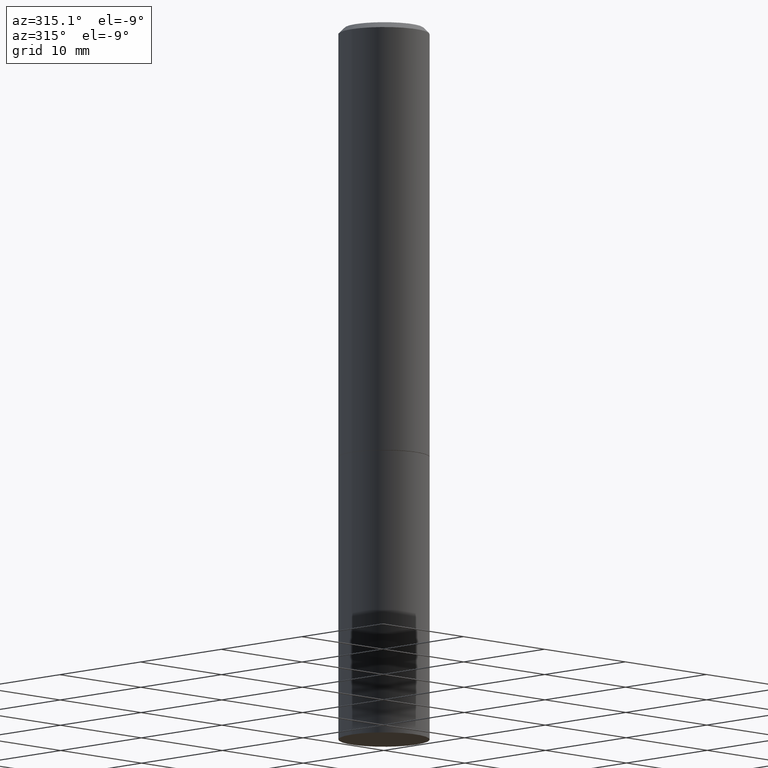
[diagram: clean part render]
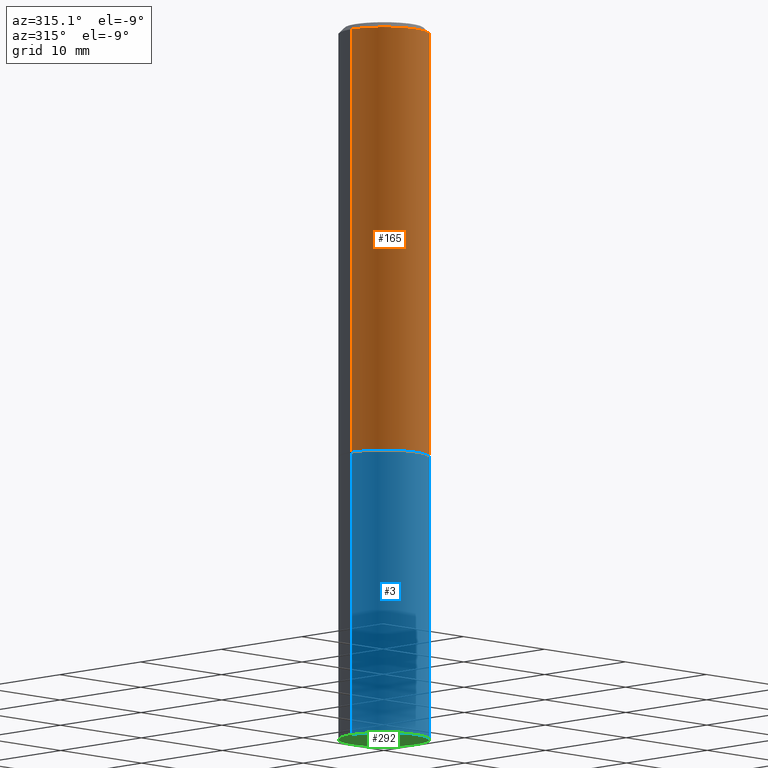
[diagram: same view with three faces highlighted in distinct colors, each labeled with its STEP entity id]
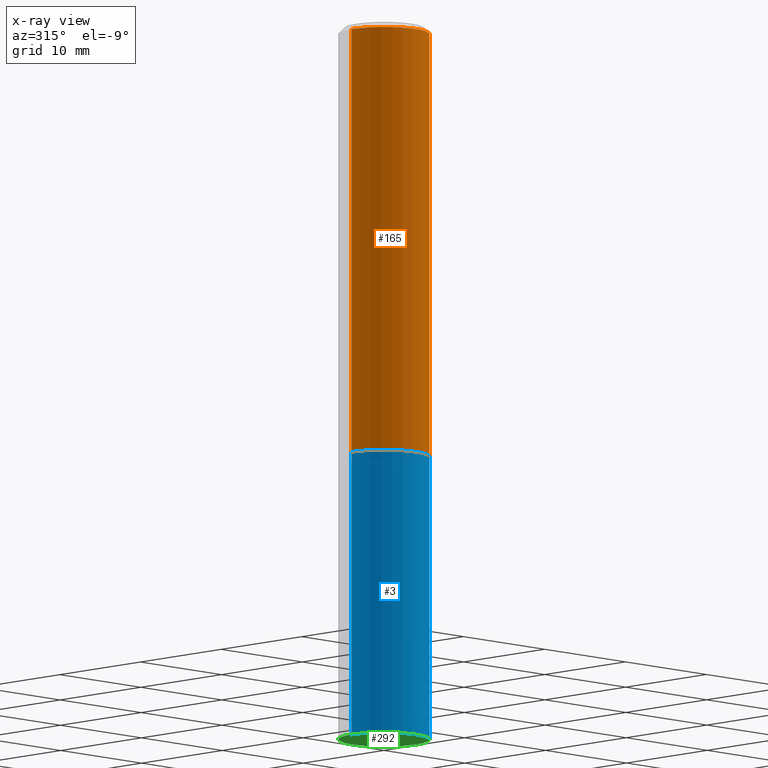
[diagram: x-ray of the same camera — body ghosted, the three highlighted faces saturated]
A machine part, auxiliary view with three faces highlighted in distinct colors.
The next image is the same camera in x-ray (body ghosted, the three faces saturated) — at least one of them is partly hidden behind the body in this view.
Their STEP definitions:

[orange] entity #165 — the highlighted cylindrical surface (partial cylindrical patch) has radius 4.0005 mm, axis along (-0, 0, 1).
#11 = DIRECTION ( 'NONE',  ( -2.445468806185136597E-29, 3.491481338843145583E-15, 1.000000000000000000 ) ) ;
#12 = DIRECTION ( 'NONE',  ( -2.445468806185136877E-29, 3.491481338843145188E-15, 1.000000000000000000 ) ) ;
#25 = VERTEX_POINT ( 'NONE', #79 ) ;
#33 = DIRECTION ( 'NONE',  ( 1.000000000000000000, -6.982962677686266711E-15, 4.876176775795935793E-29 ) ) ;
#38 = DIRECTION ( 'NONE',  ( -2.445468806185136877E-29, 3.491481338843145188E-15, 1.000000000000000000 ) ) ;
#40 = LINE ( 'NONE', #89, #124 ) ;
#45 = ORIENTED_EDGE ( 'NONE', *, *, #265, .T. ) ;
#46 = CARTESIAN_POINT ( 'NONE',  ( 0.1574999999999998901, -1.099816621735586297E-15, 7.679978421878593829E-30 ) ) ;
#62 = CARTESIAN_POINT ( 'NONE',  ( 3.655975865246779683E-29, -5.219764601570503930E-15, -1.495000000000000329 ) ) ;
#63 = CIRCLE ( 'NONE', #204, 0.1575000000000000011 ) ;
#69 = VERTEX_POINT ( 'NONE', #317 ) ;
#75 = AXIS2_PLACEMENT_3D ( 'NONE', #271, #206, #125 ) ;
#79 = CARTESIAN_POINT ( 'NONE',  ( -0.1574999999999998346, 1.029986994958722604E-15, -0.02000000000000003511 ) ) ;
#81 = EDGE_CURVE ( 'NONE', #96, #25, #40, .T. ) ;
#89 = CARTESIAN_POINT ( 'NONE',  ( -0.1574999999999998901, 1.119104808822157012E-15, -7.747322767151471379E-30 ) ) ;
#93 = EDGE_CURVE ( 'NONE', #96, #69, #63, .T. ) ;
#96 = VERTEX_POINT ( 'NONE', #152 ) ;
#124 = VECTOR ( 'NONE', #38, 39.37007874015748143 ) ;
#125 = DIRECTION ( 'NONE',  ( 1.000000000000000000, -6.982962677686265922E-15, 0.000000000000000000 ) ) ;
#143 = CARTESIAN_POINT ( 'NONE',  ( 0.000000000000000000, 0.000000000000000000, 0.000000000000000000 ) ) ;
#152 = CARTESIAN_POINT ( 'NONE',  ( -0.1575000000000000011, -1.525692305351524236E-15, -1.495000000000000329 ) ) ;
#153 = VERTEX_POINT ( 'NONE', #221 ) ;
#165 = ADVANCED_FACE ( 'NONE', ( #365 ), #196, .T. ) ;
#180 = ORIENTED_EDGE ( 'NONE', *, *, #93, .T. ) ;
#196 = CYLINDRICAL_SURFACE ( 'NONE', #277, 0.1574999999999998901 ) ;
#198 = CIRCLE ( 'NONE', #75, 0.1574999999999998346 ) ;
#204 = AXIS2_PLACEMENT_3D ( 'NONE', #62, #11, #327 ) ;
#206 = DIRECTION ( 'NONE',  ( -2.445468806185136597E-29, 3.491481338843145583E-15, 1.000000000000000000 ) ) ;
#220 = VECTOR ( 'NONE', #12, 39.37007874015748143 ) ;
#221 = CARTESIAN_POINT ( 'NONE',  ( 0.1574999999999998346, -1.150358061425878091E-15, -0.02000000000000003511 ) ) ;
#226 = EDGE_CURVE ( 'NONE', #25, #153, #198, .T. ) ;
#228 = DIRECTION ( 'NONE',  ( -2.445468806185136597E-29, 3.491481338843145583E-15, 1.000000000000000000 ) ) ;
#264 = EDGE_LOOP ( 'NONE', ( #359, #180, #45, #334 ) ) ;
#265 = EDGE_CURVE ( 'NONE', #69, #153, #302, .T. ) ;
#271 = CARTESIAN_POINT ( 'NONE',  ( 4.890937612370281041E-31, -6.982962677686302702E-17, -0.02000000000000003511 ) ) ;
#277 = AXIS2_PLACEMENT_3D ( 'NONE', #143, #228, #33 ) ;
#302 = LINE ( 'NONE', #46, #220 ) ;
#317 = CARTESIAN_POINT ( 'NONE',  ( 0.1575000000000000011, -6.319581223306091410E-15, -1.495000000000000329 ) ) ;
#327 = DIRECTION ( 'NONE',  ( 1.000000000000000000, -6.982962677686268288E-15, 0.000000000000000000 ) ) ;
#334 = ORIENTED_EDGE ( 'NONE', *, *, #226, .F. ) ;
#359 = ORIENTED_EDGE ( 'NONE', *, *, #81, .F. ) ;
#365 = FACE_OUTER_BOUND ( 'NONE', #264, .T. ) ;

[blue] entity #3 — the highlighted cylindrical surface (partial cylindrical patch) has radius 4.0005 mm, axis along (-0, 0, 1).
#3 = ADVANCED_FACE ( 'NONE', ( #218 ), #29, .T. ) ;
#22 = VERTEX_POINT ( 'NONE', #106 ) ;
#29 = CYLINDRICAL_SURFACE ( 'NONE', #229, 0.1575000000000000011 ) ;
#36 = CARTESIAN_POINT ( 'NONE',  ( 3.658421334052965286E-29, -5.223256082909346937E-15, -1.496000000000000441 ) ) ;
#44 = CARTESIAN_POINT ( 'NONE',  ( 0.1575000000000000011, -6.323072704644934417E-15, -1.496000000000000441 ) ) ;
#68 = EDGE_CURVE ( 'NONE', #301, #131, #146, .T. ) ;
#78 = EDGE_CURVE ( 'NONE', #219, #301, #293, .T. ) ;
#85 = EDGE_CURVE ( 'NONE', #22, #131, #91, .T. ) ;
#91 = CIRCLE ( 'NONE', #177, 0.1575000000000000011 ) ;
#102 = ORIENTED_EDGE ( 'NONE', *, *, #68, .T. ) ;
#105 = EDGE_LOOP ( 'NONE', ( #311, #328, #102, #183 ) ) ;
#106 = CARTESIAN_POINT ( 'NONE',  ( -0.1575000000000000011, -5.822483814998842744E-15, -1.496000000000000441 ) ) ;
#131 = VERTEX_POINT ( 'NONE', #44 ) ;
#138 = DIRECTION ( 'NONE',  ( 1.000000000000000000, -6.982962677686261977E-15, 0.000000000000000000 ) ) ;
#139 = DIRECTION ( 'NONE',  ( 1.000000000000000000, -6.982962677686268288E-15, 0.000000000000000000 ) ) ;
#146 = LINE ( 'NONE', #349, #184 ) ;
#167 = DIRECTION ( 'NONE',  ( -2.445468806185136597E-29, 3.491481338843145583E-15, 1.000000000000000000 ) ) ;
#177 = AXIS2_PLACEMENT_3D ( 'NONE', #36, #167, #139 ) ;
#179 = CARTESIAN_POINT ( 'NONE',  ( -0.1575000000000000011, 1.119104808822157801E-15, -7.747322767151475583E-30 ) ) ;
#183 = ORIENTED_EDGE ( 'NONE', *, *, #85, .F. ) ;
#184 = VECTOR ( 'NONE', #262, 39.37007874015748143 ) ;
#191 = CARTESIAN_POINT ( 'NONE',  ( 0.000000000000000000, 0.000000000000000000, 0.000000000000000000 ) ) ;
#193 = DIRECTION ( 'NONE',  ( -2.445468806185136597E-29, 3.491481338843145583E-15, 1.000000000000000000 ) ) ;
#218 = FACE_OUTER_BOUND ( 'NONE', #105, .T. ) ;
#219 = VERTEX_POINT ( 'NONE', #360 ) ;
#229 = AXIS2_PLACEMENT_3D ( 'NONE', #191, #193, #306 ) ;
#232 = CARTESIAN_POINT ( 'NONE',  ( 6.065496279980994755E-29, -8.659921164732655335E-15, -2.480300000000000171 ) ) ;
#247 = CARTESIAN_POINT ( 'NONE',  ( 0.1575000000000000011, -9.759737786468242027E-15, -2.480300000000000171 ) ) ;
#262 = DIRECTION ( 'NONE',  ( -2.445468806185136877E-29, 3.491481338843145188E-15, 1.000000000000000000 ) ) ;
#289 = DIRECTION ( 'NONE',  ( -2.445468806185136597E-29, 3.491481338843145583E-15, 1.000000000000000000 ) ) ;
#293 = CIRCLE ( 'NONE', #344, 0.1575000000000000011 ) ;
#297 = DIRECTION ( 'NONE',  ( -2.445468806185136877E-29, 3.491481338843145188E-15, 1.000000000000000000 ) ) ;
#301 = VERTEX_POINT ( 'NONE', #247 ) ;
#303 = EDGE_CURVE ( 'NONE', #219, #22, #363, .T. ) ;
#306 = DIRECTION ( 'NONE',  ( 1.000000000000000000, -6.982962677686265922E-15, 4.876176775795935232E-29 ) ) ;
#311 = ORIENTED_EDGE ( 'NONE', *, *, #303, .F. ) ;
#328 = ORIENTED_EDGE ( 'NONE', *, *, #78, .T. ) ;
#344 = AXIS2_PLACEMENT_3D ( 'NONE', #232, #289, #138 ) ;
#349 = CARTESIAN_POINT ( 'NONE',  ( 0.1575000000000000011, -1.099816621735586889E-15, 7.679978421878598033E-30 ) ) ;
#350 = VECTOR ( 'NONE', #297, 39.37007874015748143 ) ;
#360 = CARTESIAN_POINT ( 'NONE',  ( -0.1575000000000000011, -5.822483814998842744E-15, -2.480300000000000171 ) ) ;
#363 = LINE ( 'NONE', #179, #350 ) ;

[green] entity #292 — the highlighted planar face has unit normal (0, -0, -1).
#78 = EDGE_CURVE ( 'NONE', #219, #301, #293, .T. ) ;
#87 = CARTESIAN_POINT ( 'NONE',  ( 6.065496279980994755E-29, -8.659921164732655335E-15, -2.480300000000000171 ) ) ;
#114 = DIRECTION ( 'NONE',  ( 1.000000000000000000, -6.982962677686261977E-15, 0.000000000000000000 ) ) ;
#120 = DIRECTION ( 'NONE',  ( 2.438088387897960049E-29, -3.491481338843145188E-15, -1.000000000000000000 ) ) ;
#129 = ORIENTED_EDGE ( 'NONE', *, *, #78, .F. ) ;
#132 = CIRCLE ( 'NONE', #282, 0.1575000000000000011 ) ;
#138 = DIRECTION ( 'NONE',  ( 1.000000000000000000, -6.982962677686261977E-15, 0.000000000000000000 ) ) ;
#147 = CARTESIAN_POINT ( 'NONE',  ( 1.099816621735647434E-15, 0.1574999999999913136, -2.480300000000001059 ) ) ;
#168 = EDGE_CURVE ( 'NONE', #301, #219, #132, .T. ) ;
#197 = EDGE_LOOP ( 'NONE', ( #217, #129 ) ) ;
#215 = AXIS2_PLACEMENT_3D ( 'NONE', #147, #120, #266 ) ;
#217 = ORIENTED_EDGE ( 'NONE', *, *, #168, .F. ) ;
#219 = VERTEX_POINT ( 'NONE', #360 ) ;
#232 = CARTESIAN_POINT ( 'NONE',  ( 6.065496279980994755E-29, -8.659921164732655335E-15, -2.480300000000000171 ) ) ;
#247 = CARTESIAN_POINT ( 'NONE',  ( 0.1575000000000000011, -9.759737786468242027E-15, -2.480300000000000171 ) ) ;
#266 = DIRECTION ( 'NONE',  ( -1.000000000000000000, 6.982962677686265922E-15, -4.876176775795935793E-29 ) ) ;
#282 = AXIS2_PLACEMENT_3D ( 'NONE', #87, #319, #114 ) ;
#289 = DIRECTION ( 'NONE',  ( -2.445468806185136597E-29, 3.491481338843145583E-15, 1.000000000000000000 ) ) ;
#290 = FACE_OUTER_BOUND ( 'NONE', #197, .T. ) ;
#292 = ADVANCED_FACE ( 'NONE', ( #290 ), #353, .T. ) ;
#293 = CIRCLE ( 'NONE', #344, 0.1575000000000000011 ) ;
#301 = VERTEX_POINT ( 'NONE', #247 ) ;
#319 = DIRECTION ( 'NONE',  ( -2.445468806185136597E-29, 3.491481338843145583E-15, 1.000000000000000000 ) ) ;
#344 = AXIS2_PLACEMENT_3D ( 'NONE', #232, #289, #138 ) ;
#353 = PLANE ( 'NONE',  #215 ) ;
#360 = CARTESIAN_POINT ( 'NONE',  ( -0.1575000000000000011, -5.822483814998842744E-15, -2.480300000000000171 ) ) ;